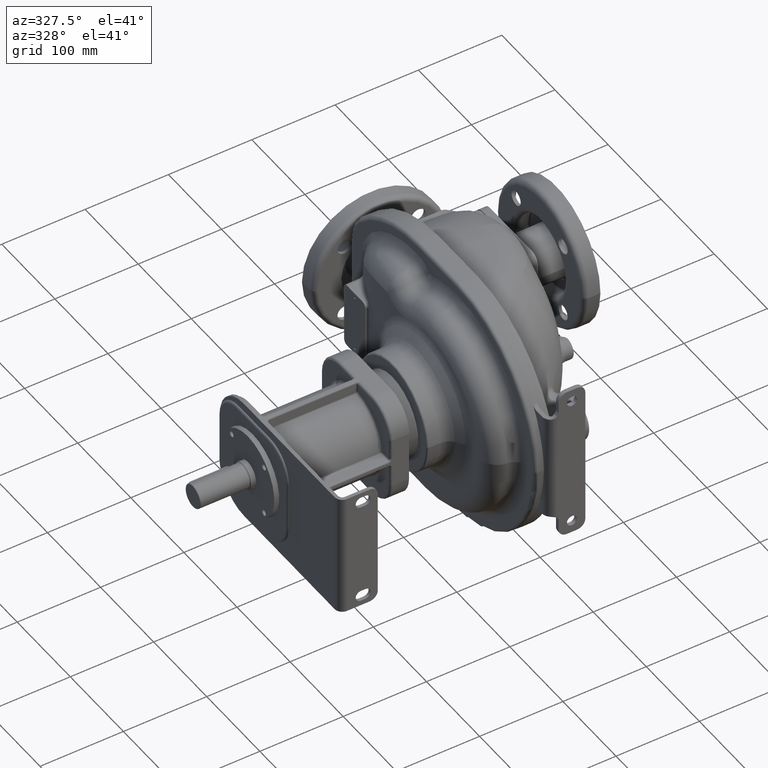
[diagram: clean part render]
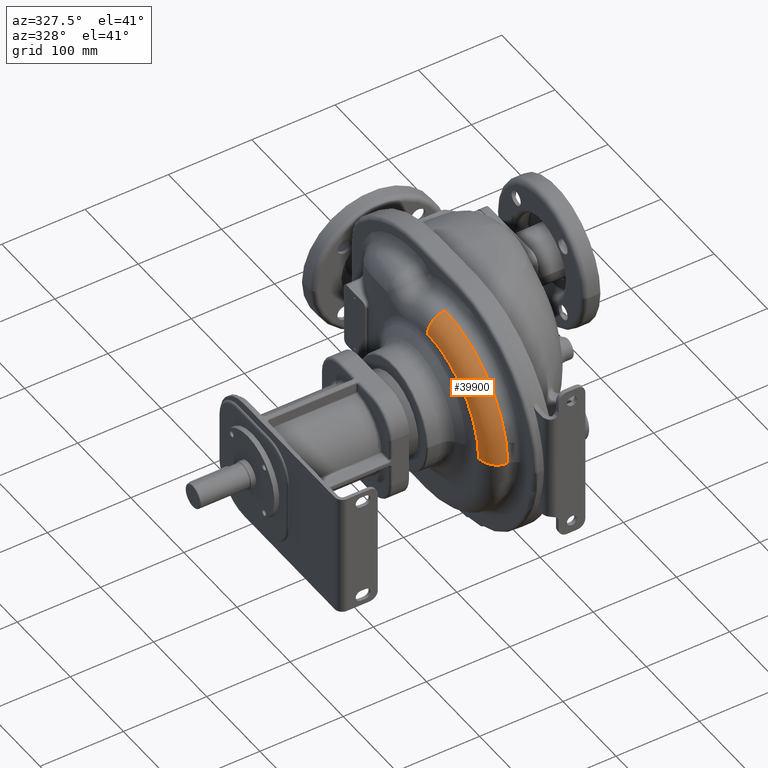
[diagram: same view with one face highlighted and labeled with its STEP entity id]
A machine part, auxiliary view. The second image highlights one B-rep face of the part: STEP entity #39900.
In plain terms, the highlighted toroidal blend (fillet) surface has major radius 96.1834 mm and minor (blend) radius 22 mm.
Its self-contained STEP definition (entity closure, byte-faithful):
#10342=CARTESIAN_POINT('',(-5.368918918919E1,-5.E0,-5.E0));
#10343=DIRECTION('',(1.E0,0.E0,0.E0));
#10344=DIRECTION('',(0.E0,0.E0,1.E0));
#10345=AXIS2_PLACEMENT_3D('',#10342,#10343,#10344);
#10347=CARTESIAN_POINT('',(-5.25E1,-5.E0,9.118341232712E1));
#10348=DIRECTION('',(0.E0,-1.E0,0.E0));
#10349=DIRECTION('',(-5.405405405405E-2,0.E0,9.985380109141E-1));
#10350=AXIS2_PLACEMENT_3D('',#10347,#10348,#10349);
#10357=CARTESIAN_POINT('',(-5.25E1,-1.011834123271E2,-5.E0));
#10358=DIRECTION('',(0.E0,0.E0,-1.E0));
#10359=DIRECTION('',(-5.405405405405E-2,-9.985380109141E-1,0.E0));
#10360=AXIS2_PLACEMENT_3D('',#10357,#10358,#10359);
#11857=CARTESIAN_POINT('',(-7.45E1,-5.E0,-5.E0));
#11858=DIRECTION('',(1.E0,0.E0,0.E0));
#11859=DIRECTION('',(0.E0,0.E0,1.E0));
#11860=AXIS2_PLACEMENT_3D('',#11857,#11858,#11859);
#22848=CARTESIAN_POINT('',(-7.45E1,-1.011834123271E2,-5.E0));
#22849=VERTEX_POINT('',#22848);
#22850=CARTESIAN_POINT('',(-7.45E1,-5.E0,9.118341232712E1));
#22851=VERTEX_POINT('',#22850);
#22871=CARTESIAN_POINT('',(-5.368918918919E1,-5.E0,1.131512485672E2));
#22872=CARTESIAN_POINT('',(-5.368918918919E1,-1.231512485672E2,-5.E0));
#22873=VERTEX_POINT('',#22871);
#22874=VERTEX_POINT('',#22872);
#39886=CARTESIAN_POINT('',(-5.25E1,-5.E0,-5.E0));
#39887=DIRECTION('',(-1.E0,0.E0,0.E0));
#39888=DIRECTION('',(0.E0,4.019558850857E-3,9.999919215407E-1));
#39889=AXIS2_PLACEMENT_3D('',#39886,#39887,#39888);
#39890=TOROIDAL_SURFACE('',#39889,9.618341232712E1,2.2E1);
#39891=ORIENTED_EDGE('',*,*,#39869,.T.);
#39893=ORIENTED_EDGE('',*,*,#39892,.T.);
#39895=ORIENTED_EDGE('',*,*,#39894,.F.);
#39897=ORIENTED_EDGE('',*,*,#39896,.F.);
#39898=EDGE_LOOP('',(#39891,#39893,#39895,#39897));
#39899=FACE_OUTER_BOUND('',#39898,.F.);
#10346=CIRCLE('',#10345,1.181512485672E2);
#10351=CIRCLE('',#10350,2.2E1);
#10361=CIRCLE('',#10360,2.2E1);
#11861=CIRCLE('',#11860,9.618341232712E1);
#39869=EDGE_CURVE('',#22873,#22874,#10346,.T.);
#39892=EDGE_CURVE('',#22874,#22849,#10361,.T.);
#39894=EDGE_CURVE('',#22851,#22849,#11861,.T.);
#39896=EDGE_CURVE('',#22873,#22851,#10351,.T.);
#39900=ADVANCED_FACE('',(#39899),#39890,.T.);